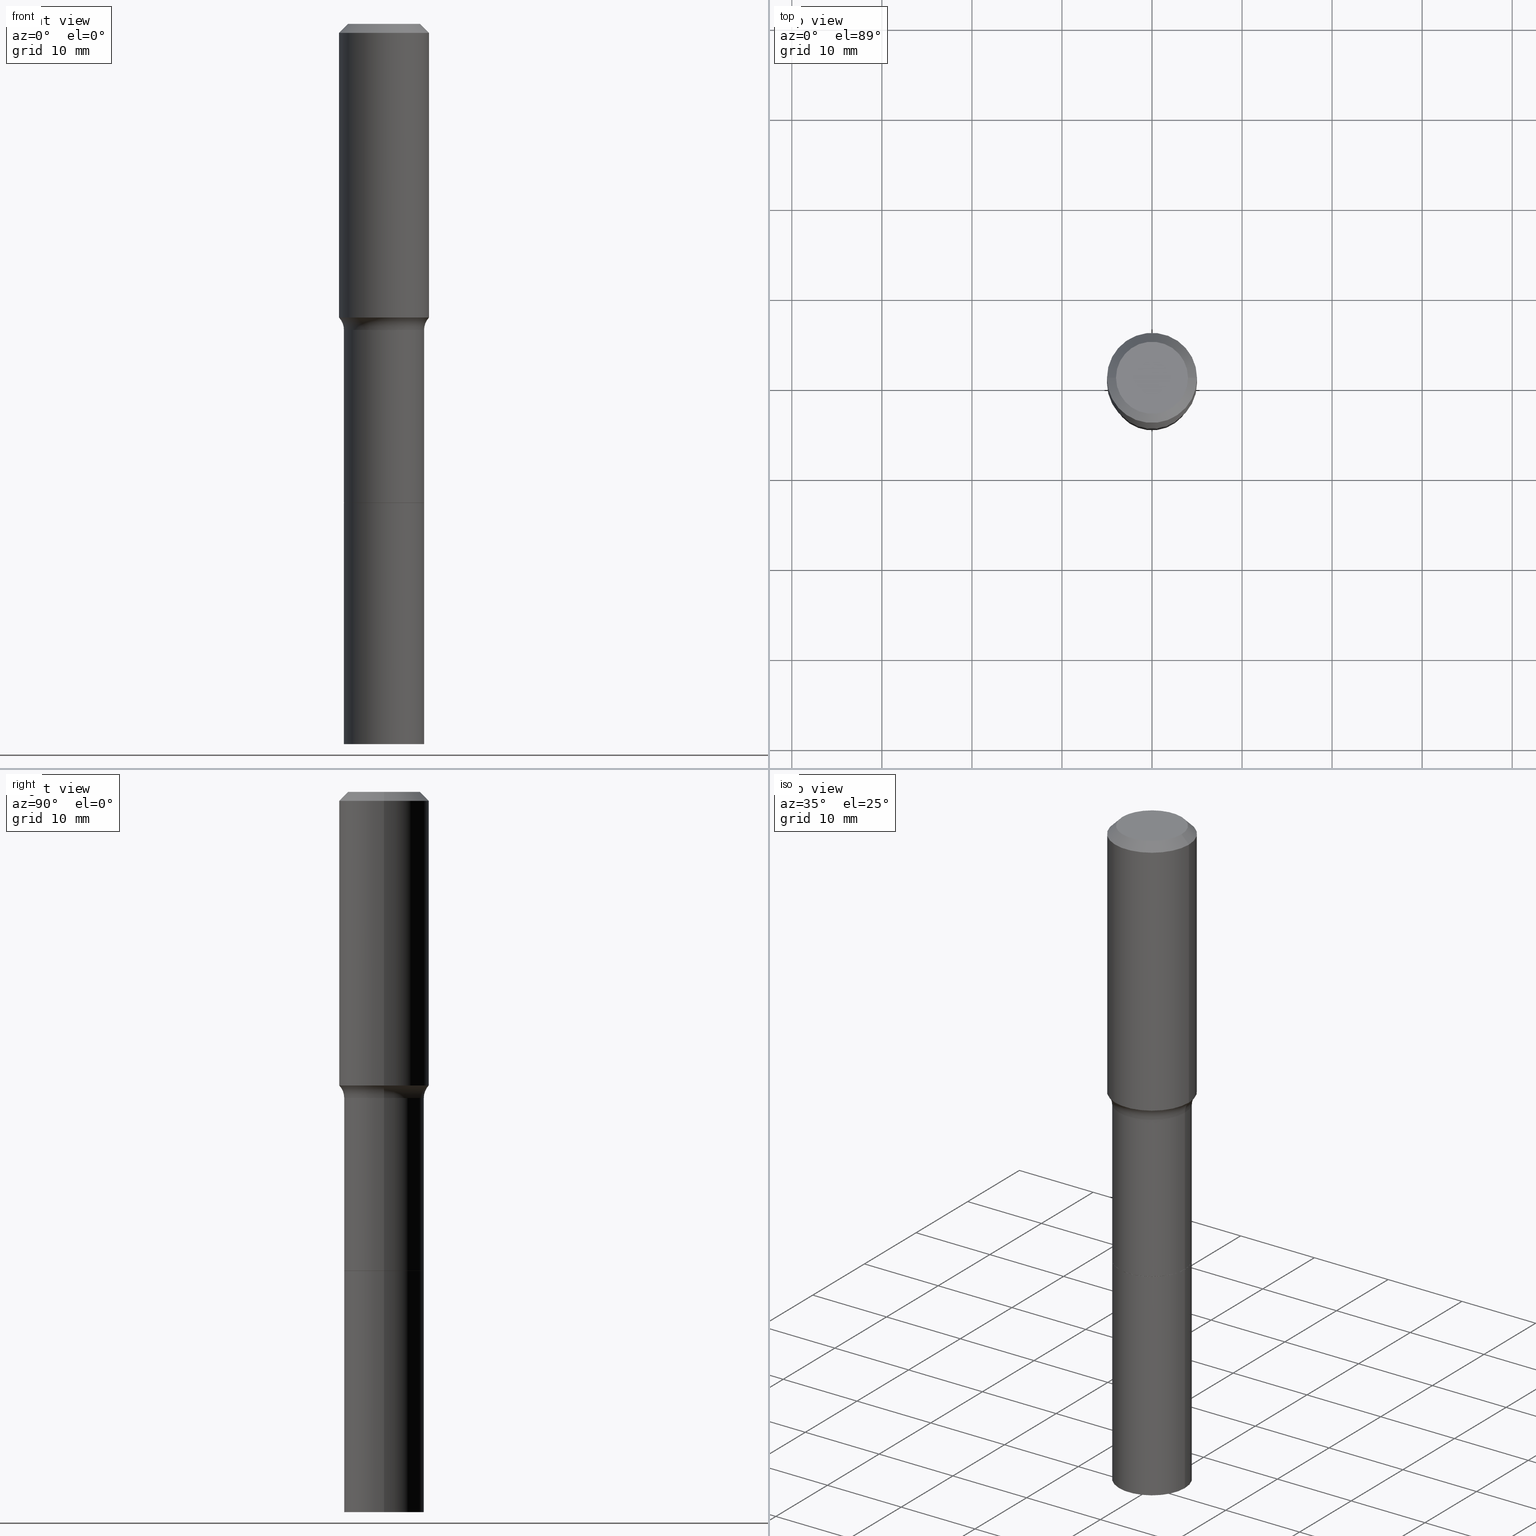
[diagram: canonical four-view strip — front | top / right | iso, engineering-drawing reading convention]
A machine part, canonical four-view strip (front | top / right | iso — engineering-drawing reading convention). The complete STEP part file that produces these views, byte-faithful:
ISO-10303-21;
HEADER;
FILE_DESCRIPTION (( 'STEP AP203' ),
    '1' );
FILE_NAME ('67766.STEP',
    '2025-04-01T15:30:25',
    ( '' ),
    ( '' ),
    'SwSTEP 2.0',
    'SolidWorks 2024',
    '' );
FILE_SCHEMA (( 'CONFIG_CONTROL_DESIGN' ));
ENDSEC;

DATA;
#1 = DIRECTION ( 'NONE',  ( -2.445468806185136877E-29, 3.491481338843145188E-15, 1.000000000000000000 ) ) ;
#2 = CARTESIAN_POINT ( 'NONE',  ( 0.1751999999999998836, -5.897111981306068614E-15, -1.338600000000000234 ) ) ;
#3 = ORIENTED_EDGE ( 'NONE', *, *, #29, .T. ) ;
#4 = LENGTH_MEASURE_WITH_UNIT ( LENGTH_MEASURE( 0.02539999999999999897 ), #48 );
#5 = ORIENTED_EDGE ( 'NONE', *, *, #284, .T. ) ;
#6 = ADVANCED_FACE ( 'NONE', ( #11 ), #261, .F. ) ;
#7 = CIRCLE ( 'NONE', #201, 0.1966917038704663334 ) ;
#8 = EDGE_CURVE ( 'NONE', #128, #358, #281, .T. ) ;
#9 = ORIENTED_EDGE ( 'NONE', *, *, #395, .F. ) ;
#10 = APPROVAL_DATE_TIME ( #220, #476 ) ;
#11 = FACE_OUTER_BOUND ( 'NONE', #173, .T. ) ;
#12 = APPLICATION_CONTEXT ( 'configuration controlled 3d designs of mechanical parts and assemblies' ) ;
#13 = PRODUCT ( '67766', '67766', '', ( #443 ) ) ;
#14 = DIRECTION ( 'NONE',  ( -2.445468806185136597E-29, 3.491481338843145583E-15, 1.000000000000000000 ) ) ;
#15 = AXIS2_PLACEMENT_3D ( 'NONE', #466, #303, #469 ) ;
#16 = FACE_OUTER_BOUND ( 'NONE', #251, .T. ) ;
#17 = DIRECTION ( 'NONE',  ( 1.000000000000000000, 0.000000000000000000, 0.000000000000000000 ) ) ;
#18 = DATE_AND_TIME ( #375, #437 ) ;
#19 = AXIS2_PLACEMENT_3D ( 'NONE', #36, #107, #346 ) ;
#20 = VECTOR ( 'NONE', #397, 39.37007874015748143 ) ;
#21 = EDGE_CURVE ( 'NONE', #352, #361, #471, .T. ) ;
#22 = DIRECTION ( 'NONE',  ( 1.000000000000000000, -6.982962677686269077E-15, 0.000000000000000000 ) ) ;
#23 = CARTESIAN_POINT ( 'NONE',  ( -0.1966917038704663334, -3.085623542698681313E-15, -1.284040131195000267 ) ) ;
#24 = ORIENTED_EDGE ( 'NONE', *, *, #315, .T. ) ;
#25 = CARTESIAN_POINT ( 'NONE',  ( -0.1574800000000000089, 1.168406772637159815E-15, 3.855188123707939751E-18 ) ) ;
#26 = CARTESIAN_POINT ( 'NONE',  ( 9.627810689950955906E-31, -1.374596203102556794E-16, -0.03937000000000030059 ) ) ;
#27 = DIRECTION ( 'NONE',  ( 1.000000000000000000, -6.982962677686266711E-15, 4.876176775795935793E-29 ) ) ;
#28 = ORIENTED_EDGE ( 'NONE', *, *, #258, .T. ) ;
#29 = EDGE_CURVE ( 'NONE', #203, #420, #322, .T. ) ;
#30 = CYLINDRICAL_SURFACE ( 'NONE', #371, 0.1968500000000001082 ) ;
#31 = AXIS2_PLACEMENT_3D ( 'NONE', #380, #146, #22 ) ;
#32 = EDGE_CURVE ( 'NONE', #233, #358, #407, .T. ) ;
#33 = CARTESIAN_POINT ( 'NONE',  ( 0.1966917038704663334, -5.856692983531033288E-15, -1.284040131195000267 ) ) ;
#34 = AXIS2_PLACEMENT_3D ( 'NONE', #278, #351, #431 ) ;
#35 = CARTESIAN_POINT ( 'NONE',  ( 5.122278961435387736E-29, -7.313256812340853051E-15, -2.094600000000000239 ) ) ;
#36 = CARTESIAN_POINT ( 'NONE',  ( 3.140080086727243021E-29, -4.483202156393047465E-15, -1.284040131195000267 ) ) ;
#37 = ORIENTED_EDGE ( 'NONE', *, *, #381, .T. ) ;
#38 =( NAMED_UNIT ( * ) SI_UNIT ( $, .STERADIAN. ) SOLID_ANGLE_UNIT ( ) );
#39 = EDGE_CURVE ( 'NONE', #268, #472, #269, .T. ) ;
#40 = EDGE_CURVE ( 'NONE', #203, #352, #257, .T. ) ;
#41 = DIRECTION ( 'NONE',  ( 1.000000000000000000, -6.982962677686265922E-15, 0.000000000000000000 ) ) ;
#42 = ORIENTED_EDGE ( 'NONE', *, *, #189, .T. ) ;
#43 = CC_DESIGN_APPROVAL ( #197, ( #506 ) ) ;
#44 = DIRECTION ( 'NONE',  ( -2.445468806185136597E-29, 3.491481338843145583E-15, 1.000000000000000000 ) ) ;
#45 = LINE ( 'NONE', #283, #143 ) ;
#46 = CARTESIAN_POINT ( 'NONE',  ( -0.1751999999999999391, 1.244870873051695093E-15, -8.617974278126592972E-30 ) ) ;
#47 = ORIENTED_EDGE ( 'NONE', *, *, #207, .F. ) ;
#48 =( LENGTH_UNIT ( ) NAMED_UNIT ( * ) SI_UNIT ( $, .METRE. ) );
#49 = ORIENTED_EDGE ( 'NONE', *, *, #360, .T. ) ;
#50 = DIRECTION ( 'NONE',  ( 1.000000000000000000, -6.982962677686268288E-15, 4.883557194083113462E-29 ) ) ;
#51 = ORIENTED_EDGE ( 'NONE', *, *, #468, .T. ) ;
#52 = AXIS2_PLACEMENT_3D ( 'NONE', #460, #427, #423 ) ;
#53 = CONICAL_SURFACE ( 'NONE', #79, 0.1966917038704663334, 0.7504915783578517408 ) ;
#54 = APPROVAL_STATUS ( 'not_yet_approved' ) ;
#55 = ORIENTED_EDGE ( 'NONE', *, *, #176, .F. ) ;
#56 = CARTESIAN_POINT ( 'NONE',  ( -4.713871149261283817E-47, 6.730158695841841775E-33, 1.927594061857935365E-18 ) ) ;
#57 = APPROVAL_ROLE ( '' ) ;
#58 = PERSON_AND_ORGANIZATION ( #180, #446 ) ;
#59 = CARTESIAN_POINT ( 'NONE',  ( 5.122278961435387736E-29, -7.313256812340853051E-15, -2.094600000000000239 ) ) ;
#60 = VECTOR ( 'NONE', #334, 39.37007874015748143 ) ;
#61 = PERSON_AND_ORGANIZATION ( #180, #446 ) ;
#62 = UNCERTAINTY_MEASURE_WITH_UNIT (LENGTH_MEASURE( 1.000000000000000082E-05 ), #440, 'distance_accuracy_value', 'NONE');
#63 = EDGE_CURVE ( 'NONE', #268, #492, #302, .T. ) ;
#64 = COORDINATED_UNIVERSAL_TIME_OFFSET ( 5, 0, .BEHIND. ) ;
#65 = PLANE ( 'NONE',  #135 ) ;
#66 = VERTEX_POINT ( 'NONE', #25 ) ;
#67 = CARTESIAN_POINT ( 'NONE',  ( -0.1746999999999999942, -6.071938652967958265E-15, -2.094600000000000239 ) ) ;
#68 = VECTOR ( 'NONE', #1, 39.37007874015748143 ) ;
#69 = DIRECTION ( 'NONE',  ( 1.000000000000000000, -6.982962677686267499E-15, 0.000000000000000000 ) ) ;
#70 = CARTESIAN_POINT ( 'NONE',  ( -0.1746999999999999942, -6.069289425793847064E-15, -2.094600000000000239 ) ) ;
#71 = DIRECTION ( 'NONE',  ( -0.6819983600627106402, 7.399397606725103836E-15, 0.7313537016189727291 ) ) ;
#72 = DIRECTION ( 'NONE',  ( -2.445468806185136597E-29, 3.491481338843145583E-15, 1.000000000000000000 ) ) ;
#73 = ORIENTED_EDGE ( 'NONE', *, *, #366, .T. ) ;
#74 = ADVANCED_FACE ( 'NONE', ( #455 ), #192, .F. ) ;
#75 = DIRECTION ( 'NONE',  ( 1.000000000000000000, -6.982962677686267499E-15, 0.000000000000000000 ) ) ;
#76 = CARTESIAN_POINT ( 'NONE',  ( 0.1751999999999999946, -8.534926132802064636E-15, -2.094100000000000072 ) ) ;
#77 = CARTESIAN_POINT ( 'NONE',  ( -9.427742298522567634E-47, 1.346031739168368355E-32, 3.855188123715870730E-18 ) ) ;
#78 = DIRECTION ( 'NONE',  ( 1.000000000000000000, -6.982962677686266711E-15, 4.876176775795935793E-29 ) ) ;
#79 = AXIS2_PLACEMENT_3D ( 'NONE', #156, #463, #467 ) ;
#80 = EDGE_CURVE ( 'NONE', #436, #492, #282, .T. ) ;
#81 = CARTESIAN_POINT ( 'NONE',  ( 9.627810689950955906E-31, -1.374596203102556794E-16, -0.03937000000000030059 ) ) ;
#82 = ORIENTED_EDGE ( 'NONE', *, *, #294, .T. ) ;
#83 = CARTESIAN_POINT ( 'NONE',  ( 0.1966917038704663334, -5.856692983531034076E-15, -1.284040131195000267 ) ) ;
#84 = DIRECTION ( 'NONE',  ( -2.445468806185136597E-29, 3.491481338843145583E-15, 1.000000000000000000 ) ) ;
#85 = AXIS2_PLACEMENT_3D ( 'NONE', #56, #304, #193 ) ;
#86 = VERTEX_POINT ( 'NONE', #265 ) ;
#87 =( GEOMETRIC_REPRESENTATION_CONTEXT ( 3 ) GLOBAL_UNCERTAINTY_ASSIGNED_CONTEXT ( ( #62 ) ) GLOBAL_UNIT_ASSIGNED_CONTEXT ( ( #440, #364, #38 ) ) REPRESENTATION_CONTEXT ( 'NONE', 'WORKASPACE' ) );
#88 = DIRECTION ( 'NONE',  ( -2.445468806185136597E-29, 3.491481338843145583E-15, 1.000000000000000000 ) ) ;
#89 = ORIENTED_EDGE ( 'NONE', *, *, #485, .F. ) ;
#90 = EDGE_LOOP ( 'NONE', ( #470, #37, #367, #321 ) ) ;
#91 = EDGE_LOOP ( 'NONE', ( #356, #433 ) ) ;
#92 = CIRCLE ( 'NONE', #461, 0.1746999999999999942 ) ;
#93 = AXIS2_PLACEMENT_3D ( 'NONE', #404, #169, #510 ) ;
#94 = APPLICATION_PROTOCOL_DEFINITION ( 'international standard', 'config_control_design', 1994, #12 ) ;
#95 = DIRECTION ( 'NONE',  ( 1.000000000000000000, -6.982962677686266711E-15, 4.876176775795935793E-29 ) ) ;
#96 = ADVANCED_FACE ( 'NONE', ( #417 ), #260, .F. ) ;
#97 = PERSON_AND_ORGANIZATION ( #180, #446 ) ;
#98 = CARTESIAN_POINT ( 'NONE',  ( 3.273504543959424474E-29, -4.673696920175435525E-15, -1.338600000000000234 ) ) ;
#99 = CALENDAR_DATE ( 2025, 1, 4 ) ;
#100 = VECTOR ( 'NONE', #145, 39.37007874015748143 ) ;
#101 = DIRECTION ( 'NONE',  ( 0.000000000000000000, 0.000000000000000000, 1.000000000000000000 ) ) ;
#102 = CALENDAR_DATE ( 2025, 1, 4 ) ;
#103 = CARTESIAN_POINT ( 'NONE',  ( 0.1752000000000001889, -1.222018468595100619E-14, -3.149600000000000399 ) ) ;
#104 = ORIENTED_EDGE ( 'NONE', *, *, #129, .T. ) ;
#105 = DATE_TIME_ROLE ( 'classification_date' ) ;
#106 = CARTESIAN_POINT ( 'NONE',  ( 5.121056227032294935E-29, -7.311511071671430759E-15, -2.094100000000000072 ) ) ;
#107 = DIRECTION ( 'NONE',  ( -2.445468806185136597E-29, 3.491481338843145583E-15, 1.000000000000000000 ) ) ;
#108 = DIRECTION ( 'NONE',  ( 1.000000000000000000, -6.982962677686265922E-15, 4.876223630392693006E-29 ) ) ;
#109 = SHAPE_DEFINITION_REPRESENTATION ( #288, #254 ) ;
#110 = DIRECTION ( 'NONE',  ( 1.000000000000000000, -6.982962677686267499E-15, 0.000000000000000000 ) ) ;
#111 = CC_DESIGN_PERSON_AND_ORGANIZATION_ASSIGNMENT ( #295, #339, ( #314 ) ) ;
#112 = FACE_OUTER_BOUND ( 'NONE', #90, .T. ) ;
#113 = EDGE_CURVE ( 'NONE', #120, #472, #151, .T. ) ;
#114 = DIRECTION ( 'NONE',  ( 2.445468806185136597E-29, -3.491481338843145583E-15, -1.000000000000000000 ) ) ;
#115 = CARTESIAN_POINT ( 'NONE',  ( 3.139664963955859804E-29, -4.482609471094445680E-15, -1.283870379378770243 ) ) ;
#116 = CC_DESIGN_PERSON_AND_ORGANIZATION_ASSIGNMENT ( #292, #141, ( #392 ) ) ;
#117 = AXIS2_PLACEMENT_3D ( 'NONE', #387, #196, #391 ) ;
#118 = FACE_OUTER_BOUND ( 'NONE', #240, .T. ) ;
#119 = AXIS2_PLACEMENT_3D ( 'NONE', #162, #320, #50 ) ;
#120 = VERTEX_POINT ( 'NONE', #70 ) ;
#121 = CARTESIAN_POINT ( 'NONE',  ( 3.273504543959424474E-29, -4.673696920175435525E-15, -1.338600000000000234 ) ) ;
#122 = CARTESIAN_POINT ( 'NONE',  ( -0.1966917038704663334, -3.085623542698680919E-15, -1.284040131195000267 ) ) ;
#123 = ORIENTED_EDGE ( 'NONE', *, *, #360, .F. ) ;
#124 = DIRECTION ( 'NONE',  ( -1.000000000000000000, 6.982962677686265922E-15, -4.876176775795935793E-29 ) ) ;
#125 = EDGE_CURVE ( 'NONE', #86, #120, #92, .T. ) ;
#126 = CONICAL_SURFACE ( 'NONE', #370, 0.1968500000000000527, 0.7853981633974450594 ) ;
#127 = CONICAL_SURFACE ( 'NONE', #34, 0.1746999999999999942, 0.7853981633975507526 ) ;
#128 = VERTEX_POINT ( 'NONE', #231 ) ;
#129 = EDGE_CURVE ( 'NONE', #66, #128, #200, .T. ) ;
#130 = ORIENTED_EDGE ( 'NONE', *, *, #442, .T. ) ;
#131 = EDGE_LOOP ( 'NONE', ( #55, #24, #154, #47 ) ) ;
#132 = CC_DESIGN_DATE_AND_TIME_ASSIGNMENT ( #498, #105, ( #506 ) ) ;
#133 = APPLICATION_PROTOCOL_DEFINITION ( 'international standard', 'config_control_design', 1994, #226 ) ;
#134 = DIRECTION ( 'NONE',  ( 2.438088387897960049E-29, -3.491481338843145188E-15, -1.000000000000000000 ) ) ;
#135 = AXIS2_PLACEMENT_3D ( 'NONE', #473, #516, #124 ) ;
#136 = ADVANCED_FACE ( 'NONE', ( #112 ), #170, .T. ) ;
#137 = DIRECTION ( 'NONE',  ( -2.438088387897960049E-29, 3.491481338843145188E-15, 1.000000000000000000 ) ) ;
#138 = CALENDAR_DATE ( 2025, 1, 4 ) ;
#139 = CARTESIAN_POINT ( 'NONE',  ( 0.1968500000000000527, -1.487948651171581996E-15, -0.03937000000000030059 ) ) ;
#140 = APPROVAL_DATE_TIME ( #493, #197 ) ;
#141 = PERSON_AND_ORGANIZATION_ROLE ( 'creator' ) ;
#142 = VECTOR ( 'NONE', #310, 39.37007874015748143 ) ;
#143 = VECTOR ( 'NONE', #438, 39.37007874015748143 ) ;
#144 = FACE_OUTER_BOUND ( 'NONE', #385, .T. ) ;
#145 = DIRECTION ( 'NONE',  ( -2.445468806185136877E-29, 3.491481338843145188E-15, 1.000000000000000000 ) ) ;
#146 = DIRECTION ( 'NONE',  ( -2.445468806185136597E-29, 3.491481338843145583E-15, 1.000000000000000000 ) ) ;
#147 = CYLINDRICAL_SURFACE ( 'NONE', #52, 0.1751999999999999391 ) ;
#148 = DIRECTION ( 'NONE',  ( -2.445468806185136597E-29, 3.491481338843145583E-15, 1.000000000000000000 ) ) ;
#149 = EDGE_LOOP ( 'NONE', ( #104, #327 ) ) ;
#150 = AXIS2_PLACEMENT_3D ( 'NONE', #218, #14, #178 ) ;
#151 = LINE ( 'NONE', #67, #389 ) ;
#152 = APPROVAL_PERSON_ORGANIZATION ( #97, #263, #57 ) ;
#153 = CARTESIAN_POINT ( 'NONE',  ( 0.1968500000000001915, -5.857205674196988866E-15, -1.283870379378770243 ) ) ;
#154 = ORIENTED_EDGE ( 'NONE', *, *, #40, .T. ) ;
#155 = CARTESIAN_POINT ( 'NONE',  ( 0.1968500000000001082, -1.374596203102542397E-15, 9.598753983154305062E-30 ) ) ;
#156 = CARTESIAN_POINT ( 'NONE',  ( 3.140080086727243021E-29, -4.483202156393047465E-15, -1.284040131195000267 ) ) ;
#157 = ORIENTED_EDGE ( 'NONE', *, *, #63, .F. ) ;
#158 = CARTESIAN_POINT ( 'NONE',  ( 3.273504543959424474E-29, -4.673696920175435525E-15, -1.338600000000000234 ) ) ;
#159 = EDGE_LOOP ( 'NONE', ( #439, #487, #51, #398 ) ) ;
#160 = FACE_OUTER_BOUND ( 'NONE', #287, .T. ) ;
#161 = AXIS2_PLACEMENT_3D ( 'NONE', #35, #72, #500 ) ;
#162 = CARTESIAN_POINT ( 'NONE',  ( 3.273504543959424474E-29, -4.673696920175435525E-15, -1.338600000000000234 ) ) ;
#163 = ADVANCED_FACE ( 'NONE', ( #386 ), #30, .T. ) ;
#164 = FACE_OUTER_BOUND ( 'NONE', #390, .T. ) ;
#165 = ORIENTED_EDGE ( 'NONE', *, *, #291, .T. ) ;
#166 = EDGE_CURVE ( 'NONE', #120, #86, #451, .T. ) ;
#167 = CARTESIAN_POINT ( 'NONE',  ( -0.1751999999999999946, -4.747733122871737457E-15, -2.094100000000000072 ) ) ;
#168 = EDGE_LOOP ( 'NONE', ( #165, #518, #325, #394 ) ) ;
#169 = DIRECTION ( 'NONE',  ( -2.445468806185136597E-29, 3.491481338843145583E-15, 1.000000000000000000 ) ) ;
#170 = CONICAL_SURFACE ( 'NONE', #362, 0.1966917038704663334, 0.7504915783578517408 ) ;
#171 = FACE_OUTER_BOUND ( 'NONE', #256, .T. ) ;
#172 = AXIS2_PLACEMENT_3D ( 'NONE', #225, #101, #17 ) ;
#173 = EDGE_LOOP ( 'NONE', ( #280, #82, #474, #312 ) ) ;
#174 = MANIFOLD_SOLID_BREP ( 'Body-Move/Copy2[2]', #481 ) ;
#175 = ORIENTED_EDGE ( 'NONE', *, *, #189, .F. ) ;
#176 = EDGE_CURVE ( 'NONE', #420, #361, #221, .T. ) ;
#177 = APPROVAL_ROLE ( '' ) ;
#178 = DIRECTION ( 'NONE',  ( 1.000000000000000000, -6.982962677686265922E-15, 0.000000000000000000 ) ) ;
#179 = VECTOR ( 'NONE', #71, 39.37007874015748143 ) ;
#180 = PERSON ( 'UNSPECIFIED', 'UNSPECIFIED', 'UNSPECIFIED', ('UNSPECIFIED'), ('UNSPECIFIED'), ('UNSPECIFIED') ) ;
#181 = VECTOR ( 'NONE', #435, 39.37007874015748143 ) ;
#182 = APPROVAL_STATUS ( 'not_yet_approved' ) ;
#183 = CARTESIAN_POINT ( 'NONE',  ( 9.627810689950955906E-31, -1.374596203102556794E-16, -0.03937000000000030059 ) ) ;
#184 = ADVANCED_FACE ( 'NONE', ( #16 ), #245, .T. ) ;
#185 = PERSON_AND_ORGANIZATION_ROLE ( 'design_supplier' ) ;
#186 = AXIS2_PLACEMENT_3D ( 'NONE', #106, #341, #369 ) ;
#187 = AXIS2_PLACEMENT_3D ( 'NONE', #402, #517, #479 ) ;
#188 = DATE_AND_TIME ( #99, #255 ) ;
#189 = EDGE_CURVE ( 'NONE', #403, #358, #507, .T. ) ;
#190 = CARTESIAN_POINT ( 'NONE',  ( 3.140080086727243021E-29, -4.483202156393047465E-15, -1.284040131195000267 ) ) ;
#191 = DIRECTION ( 'NONE',  ( 1.000000000000000000, -6.982962677686265922E-15, 4.876176775795935793E-29 ) ) ;
#192 = PLANE ( 'NONE',  #85 ) ;
#193 = DIRECTION ( 'NONE',  ( -1.000000000000000000, 6.982962677686265922E-15, -4.876176775795935793E-29 ) ) ;
#194 = CARTESIAN_POINT ( 'NONE',  ( 5.122278961435387736E-29, -7.313256812340853051E-15, -2.094600000000000239 ) ) ;
#195 = ORIENTED_EDGE ( 'NONE', *, *, #40, .F. ) ;
#196 = DIRECTION ( 'NONE',  ( -2.445468806185136597E-29, 3.491481338843145583E-15, 1.000000000000000000 ) ) ;
#197 = APPROVAL ( #416, 'UNSPECIFIED' ) ;
#198 = ADVANCED_FACE ( 'NONE', ( #160 ), #215, .F. ) ;
#199 = DIRECTION ( 'NONE',  ( -1.000000000000000000, 7.105427357601005014E-15, 0.000000000000000000 ) ) ;
#200 = CIRCLE ( 'NONE', #377, 0.1574800000000000089 ) ;
#201 = AXIS2_PLACEMENT_3D ( 'NONE', #190, #236, #458 ) ;
#202 = DIRECTION ( 'NONE',  ( 1.000000000000000000, -6.982962677686266711E-15, 0.000000000000000000 ) ) ;
#203 = VERTEX_POINT ( 'NONE', #103 ) ;
#204 = CC_DESIGN_PERSON_AND_ORGANIZATION_ASSIGNMENT ( #496, #368, ( #13 ) ) ;
#205 = CARTESIAN_POINT ( 'NONE',  ( 5.122278961435387736E-29, -7.313256812340853051E-15, -2.094600000000000239 ) ) ;
#206 = ORIENTED_EDGE ( 'NONE', *, *, #315, .F. ) ;
#207 = EDGE_CURVE ( 'NONE', #361, #352, #399, .T. ) ;
#208 = CARTESIAN_POINT ( 'NONE',  ( 5.122278961435387736E-29, -7.313256812340853051E-15, -2.094600000000000239 ) ) ;
#209 = FACE_OUTER_BOUND ( 'NONE', #441, .T. ) ;
#210 = ORIENTED_EDGE ( 'NONE', *, *, #125, .T. ) ;
#211 = VECTOR ( 'NONE', #382, 39.37007874015748143 ) ;
#212 = AXIS2_PLACEMENT_3D ( 'NONE', #77, #428, #108 ) ;
#213 = ORIENTED_EDGE ( 'NONE', *, *, #39, .T. ) ;
#214 = ADVANCED_FACE ( 'NONE', ( #266 ), #147, .T. ) ;
#215 = PLANE ( 'NONE',  #345 ) ;
#216 = COORDINATED_UNIVERSAL_TIME_OFFSET ( 5, 0, .BEHIND. ) ;
#217 = ORIENTED_EDGE ( 'NONE', *, *, #80, .F. ) ;
#218 = CARTESIAN_POINT ( 'NONE',  ( 5.122278961435387736E-29, -7.313256812340853051E-15, -2.094600000000000239 ) ) ;
#219 = CALENDAR_DATE ( 2025, 1, 4 ) ;
#220 = DATE_AND_TIME ( #138, #372 ) ;
#221 = LINE ( 'NONE', #412, #60 ) ;
#222 = CIRCLE ( 'NONE', #212, 0.1574800000000000089 ) ;
#223 = LOCAL_TIME ( 11, 30, 25.00000000000000000, #259 ) ;
#224 = EDGE_CURVE ( 'NONE', #319, #253, #499, .T. ) ;
#225 = CARTESIAN_POINT ( 'NONE',  ( 0.000000000000000000, 0.000000000000000000, 0.000000000000000000 ) ) ;
#226 = APPLICATION_CONTEXT ( 'configuration controlled 3d designs of mechanical parts and assemblies' ) ;
#227 = CARTESIAN_POINT ( 'NONE',  ( 3.139664963955859804E-29, -4.482609471094445680E-15, -1.283870379378770243 ) ) ;
#228 = CLOSED_SHELL ( 'NONE', ( #509, #296, #373, #96 ) ) ;
#229 = AXIS2_PLACEMENT_3D ( 'NONE', #81, #88, #202 ) ;
#230 = APPROVAL_ROLE ( '' ) ;
#231 = CARTESIAN_POINT ( 'NONE',  ( 0.1574800000000000089, -1.284169937930321386E-15, 3.855188123724205385E-18 ) ) ;
#232 = DIRECTION ( 'NONE',  ( -2.445468806185136597E-29, 3.491481338843145583E-15, 1.000000000000000000 ) ) ;
#233 = VERTEX_POINT ( 'NONE', #235 ) ;
#234 = CARTESIAN_POINT ( 'NONE',  ( -9.427742298522567634E-47, 1.346031739168368355E-32, 3.855188123715870730E-18 ) ) ;
#235 = CARTESIAN_POINT ( 'NONE',  ( -0.1968500000000000527, -9.113311703585926457E-16, -0.03937000000000030059 ) ) ;
#236 = DIRECTION ( 'NONE',  ( -2.445468806185136597E-29, 3.491481338843145583E-15, 1.000000000000000000 ) ) ;
#237 = ORIENTED_EDGE ( 'NONE', *, *, #284, .F. ) ;
#238 = CARTESIAN_POINT ( 'NONE',  ( 5.122278961435387736E-29, -7.313256812340853051E-15, -2.094600000000000239 ) ) ;
#239 = DIRECTION ( 'NONE',  ( -1.000000000000000000, 6.982962677686266711E-15, 0.000000000000000000 ) ) ;
#240 = EDGE_LOOP ( 'NONE', ( #210, #305, #478, #123 ) ) ;
#241 = CIRCLE ( 'NONE', #323, 0.1968500000000001915 ) ;
#242 = FACE_OUTER_BOUND ( 'NONE', #131, .T. ) ;
#243 = ORIENTED_EDGE ( 'NONE', *, *, #485, .T. ) ;
#244 = ORIENTED_EDGE ( 'NONE', *, *, #166, .F. ) ;
#245 = CYLINDRICAL_SURFACE ( 'NONE', #418, 0.1751999999999999391 ) ;
#246 = AXIS2_PLACEMENT_3D ( 'NONE', #194, #340, #309 ) ;
#247 = CARTESIAN_POINT ( 'NONE',  ( 0.1968500000000000527, -1.512055823412797583E-15, -0.03937000000000030059 ) ) ;
#248 = TOROIDAL_SURFACE ( 'NONE', #119, 0.2551999999999998714, 0.08000000000000007105 ) ;
#249 = EDGE_LOOP ( 'NONE', ( #130, #454, #89, #175 ) ) ;
#250 = DIRECTION ( 'NONE',  ( -2.445468806185136597E-29, 3.491481338843145583E-15, 1.000000000000000000 ) ) ;
#251 = EDGE_LOOP ( 'NONE', ( #409, #5, #311, #217 ) ) ;
#252 = PRODUCT_RELATED_PRODUCT_CATEGORY ( 'detail', '', ( #13 ) ) ;
#253 = VERTEX_POINT ( 'NONE', #383 ) ;
#254 = ADVANCED_BREP_SHAPE_REPRESENTATION ( '67766', ( #328, #174, #172 ), #87 ) ;
#255 = LOCAL_TIME ( 11, 30, 25.00000000000000000, #447 ) ;
#256 = EDGE_LOOP ( 'NONE', ( #9, #432, #243, #401 ) ) ;
#257 = LINE ( 'NONE', #501, #100 ) ;
#258 = EDGE_CURVE ( 'NONE', #289, #492, #337, .T. ) ;
#259 = COORDINATED_UNIVERSAL_TIME_OFFSET ( 5, 0, .BEHIND. ) ;
#260 = PLANE ( 'NONE',  #332 ) ;
#261 = TOROIDAL_SURFACE ( 'NONE', #505, 0.2551999999999998714, 0.08000000000000007105 ) ;
#262 = CIRCLE ( 'NONE', #93, 0.1752000000000001889 ) ;
#263 = APPROVAL ( #182, 'UNSPECIFIED' ) ;
#264 = PERSON_AND_ORGANIZATION ( #180, #446 ) ;
#265 = CARTESIAN_POINT ( 'NONE',  ( 0.1746999999999999942, -8.533180392132643921E-15, -2.094600000000000239 ) ) ;
#266 = FACE_OUTER_BOUND ( 'NONE', #338, .T. ) ;
#267 = DIRECTION ( 'NONE',  ( -2.445468806185136597E-29, 3.491481338843145583E-15, 1.000000000000000000 ) ) ;
#268 = VERTEX_POINT ( 'NONE', #76 ) ;
#269 = CIRCLE ( 'NONE', #186, 0.1751999999999999946 ) ;
#270 = APPROVAL_PERSON_ORGANIZATION ( #264, #197, #230 ) ;
#271 = DIRECTION ( 'NONE',  ( 1.000000000000000000, -6.982962677686266711E-15, 0.000000000000000000 ) ) ;
#272 = CARTESIAN_POINT ( 'NONE',  ( 3.140080086727243021E-29, -4.483202156393047465E-15, -1.284040131195000267 ) ) ;
#273 = ADVANCED_FACE ( 'NONE', ( #457 ), #126, .T. ) ;
#274 = DIRECTION ( 'NONE',  ( -2.445468806185136597E-29, 3.491481338843145583E-15, 1.000000000000000000 ) ) ;
#275 = CC_DESIGN_PERSON_AND_ORGANIZATION_ASSIGNMENT ( #331, #185, ( #314 ) ) ;
#276 = DIRECTION ( 'NONE',  ( 7.105427357601001859E-15, 1.000000000000000000, -3.491481338843145583E-15 ) ) ;
#277 = CIRCLE ( 'NONE', #229, 0.1968500000000000527 ) ;
#278 = CARTESIAN_POINT ( 'NONE',  ( 5.122278961435387736E-29, -7.313256812340853051E-15, -2.094600000000000239 ) ) ;
#279 = ORIENTED_EDGE ( 'NONE', *, *, #421, .F. ) ;
#280 = ORIENTED_EDGE ( 'NONE', *, *, #381, .F. ) ;
#281 = LINE ( 'NONE', #139, #297 ) ;
#282 = CIRCLE ( 'NONE', #445, 0.1751999999999998836 ) ;
#283 = CARTESIAN_POINT ( 'NONE',  ( 0.1746999999999999942, -8.533180392132643921E-15, -2.094600000000000239 ) ) ;
#284 = EDGE_CURVE ( 'NONE', #472, #268, #489, .T. ) ;
#285 = ORIENTED_EDGE ( 'NONE', *, *, #166, .T. ) ;
#286 = CC_DESIGN_DATE_AND_TIME_ASSIGNMENT ( #188, #414, ( #392 ) ) ;
#287 = EDGE_LOOP ( 'NONE', ( #508, #244 ) ) ;
#288 = PRODUCT_DEFINITION_SHAPE ( 'NONE', 'NONE',  #392 ) ;
#289 = VERTEX_POINT ( 'NONE', #33 ) ;
#290 = CARTESIAN_POINT ( 'NONE',  ( 0.000000000000000000, 0.000000000000000000, 0.000000000000000000 ) ) ;
#291 = EDGE_CURVE ( 'NONE', #289, #319, #306, .T. ) ;
#292 = PERSON_AND_ORGANIZATION ( #180, #446 ) ;
#293 = DIRECTION ( 'NONE',  ( 1.000000000000000000, -6.982962677686261189E-15, 0.000000000000000000 ) ) ;
#294 = EDGE_CURVE ( 'NONE', #319, #436, #313, .T. ) ;
#295 = PERSON_AND_ORGANIZATION ( #180, #446 ) ;
#296 = ADVANCED_FACE ( 'NONE', ( #144 ), #65, .T. ) ;
#297 = VECTOR ( 'NONE', #459, 39.37007874015748143 ) ;
#298 = AXIS2_PLACEMENT_3D ( 'NONE', #388, #148, #27 ) ;
#299 = PERSON_AND_ORGANIZATION_ROLE ( 'classification_officer' ) ;
#300 = CARTESIAN_POINT ( 'NONE',  ( -0.2551999999999998714, -2.860391858515660371E-15, -1.338600000000000234 ) ) ;
#301 = EDGE_CURVE ( 'NONE', #289, #403, #359, .T. ) ;
#302 = LINE ( 'NONE', #488, #211 ) ;
#303 = DIRECTION ( 'NONE',  ( -6.982962677686266711E-15, -1.000000000000000000, 3.491481338843145583E-15 ) ) ;
#304 = DIRECTION ( 'NONE',  ( 2.438088387897960049E-29, -3.491481338843145188E-15, -1.000000000000000000 ) ) ;
#305 = ORIENTED_EDGE ( 'NONE', *, *, #113, .T. ) ;
#306 = CIRCLE ( 'NONE', #19, 0.1966917038704663334 ) ;
#307 = AXIS2_PLACEMENT_3D ( 'NONE', #483, #318, #477 ) ;
#308 = DIRECTION ( 'NONE',  ( -2.445468806185136597E-29, 3.491481338843145583E-15, 1.000000000000000000 ) ) ;
#309 = DIRECTION ( 'NONE',  ( 1.000000000000000000, -6.982962677686269077E-15, 0.000000000000000000 ) ) ;
#310 = DIRECTION ( 'NONE',  ( -2.445468806185136877E-29, 3.491481338843145188E-15, 1.000000000000000000 ) ) ;
#311 = ORIENTED_EDGE ( 'NONE', *, *, #63, .T. ) ;
#312 = ORIENTED_EDGE ( 'NONE', *, *, #258, .F. ) ;
#313 = CIRCLE ( 'NONE', #353, 0.08000000000000007105 ) ;
#314 = PRODUCT_DEFINITION_FORMATION_WITH_SPECIFIED_SOURCE ( 'ANY', '', #13, .NOT_KNOWN. ) ;
#315 = EDGE_CURVE ( 'NONE', #420, #203, #262, .T. ) ;
#316 = CYLINDRICAL_SURFACE ( 'NONE', #307, 0.1752000000000000779 ) ;
#317 = DIRECTION ( 'NONE',  ( 0.6819983600627106402, -2.208861293264647143E-15, 0.7313537016189727291 ) ) ;
#318 = DIRECTION ( 'NONE',  ( -2.445468806185136597E-29, 3.491481338843145583E-15, 1.000000000000000000 ) ) ;
#319 = VERTEX_POINT ( 'NONE', #122 ) ;
#320 = DIRECTION ( 'NONE',  ( -2.445468806185136597E-29, 3.491481338843145583E-15, 1.000000000000000000 ) ) ;
#321 = ORIENTED_EDGE ( 'NONE', *, *, #366, .F. ) ;
#322 = CIRCLE ( 'NONE', #429, 0.1752000000000001889 ) ;
#323 = AXIS2_PLACEMENT_3D ( 'NONE', #227, #274, #379 ) ;
#324 = LINE ( 'NONE', #46, #20 ) ;
#325 = ORIENTED_EDGE ( 'NONE', *, *, #442, .F. ) ;
#326 = EDGE_CURVE ( 'NONE', #253, #233, #396, .T. ) ;
#327 = ORIENTED_EDGE ( 'NONE', *, *, #395, .T. ) ;
#328 = MANIFOLD_SOLID_BREP ( 'Body-Move/Copy2[1]', #228 ) ;
#329 = CARTESIAN_POINT ( 'NONE',  ( 7.702248551960706711E-29, -1.099676962482037231E-14, -3.149600000000000399 ) ) ;
#330 = DIMENSIONAL_EXPONENTS ( 1.000000000000000000, 0.000000000000000000, 0.000000000000000000, 0.000000000000000000, 0.000000000000000000, 0.000000000000000000, 0.000000000000000000 ) ;
#331 = PERSON_AND_ORGANIZATION ( #180, #446 ) ;
#332 = AXIS2_PLACEMENT_3D ( 'NONE', #59, #134, #422 ) ;
#333 = CC_DESIGN_SECURITY_CLASSIFICATION ( #506, ( #314 ) ) ;
#334 = DIRECTION ( 'NONE',  ( -2.445468806185136877E-29, 3.491481338843145188E-15, 1.000000000000000000 ) ) ;
#335 = SECURITY_CLASSIFICATION_LEVEL ( 'unclassified' ) ;
#336 = DIRECTION ( 'NONE',  ( -2.445468806185136597E-29, 3.491481338843145583E-15, 1.000000000000000000 ) ) ;
#337 = CIRCLE ( 'NONE', #15, 0.08000000000000007105 ) ;
#338 = EDGE_LOOP ( 'NONE', ( #213, #415, #279, #157 ) ) ;
#339 = PERSON_AND_ORGANIZATION_ROLE ( 'creator' ) ;
#340 = DIRECTION ( 'NONE',  ( -2.445468806185136597E-29, 3.491481338843145583E-15, 1.000000000000000000 ) ) ;
#341 = DIRECTION ( 'NONE',  ( -2.445468806185136597E-29, 3.491481338843145583E-15, 1.000000000000000000 ) ) ;
#342 = CARTESIAN_POINT ( 'NONE',  ( -0.1751999999999998836, -4.747733122871738246E-15, -1.338600000000000234 ) ) ;
#343 = DIRECTION ( 'NONE',  ( 1.000000000000000000, -6.982962677686265922E-15, 0.000000000000000000 ) ) ;
#344 = CC_DESIGN_PERSON_AND_ORGANIZATION_ASSIGNMENT ( #61, #299, ( #506 ) ) ;
#345 = AXIS2_PLACEMENT_3D ( 'NONE', #208, #137, #191 ) ;
#346 = DIRECTION ( 'NONE',  ( 1.000000000000000000, -6.982962677686267499E-15, 0.000000000000000000 ) ) ;
#347 = FACE_OUTER_BOUND ( 'NONE', #168, .T. ) ;
#348 = CARTESIAN_POINT ( 'NONE',  ( -0.1751999999999999946, -7.910142345528915418E-15, -2.094600000000000239 ) ) ;
#349 = ORIENTED_EDGE ( 'NONE', *, *, #291, .F. ) ;
#350 = ADVANCED_FACE ( 'NONE', ( #118 ), #127, .T. ) ;
#351 = DIRECTION ( 'NONE',  ( -2.445468806185136597E-29, 3.491481338843145583E-15, 1.000000000000000000 ) ) ;
#352 = VERTEX_POINT ( 'NONE', #434 ) ;
#353 = AXIS2_PLACEMENT_3D ( 'NONE', #300, #276, #199 ) ;
#354 = CONICAL_SURFACE ( 'NONE', #462, 0.1746999999999999942, 0.7853981633975507526 ) ;
#355 = CARTESIAN_POINT ( 'NONE',  ( 0.000000000000000000, 0.000000000000000000, 0.000000000000000000 ) ) ;
#356 = ORIENTED_EDGE ( 'NONE', *, *, #21, .T. ) ;
#357 = CARTESIAN_POINT ( 'NONE',  ( -0.1968500000000000527, 1.237136582792286422E-15, -0.03937000000000030059 ) ) ;
#358 = VERTEX_POINT ( 'NONE', #247 ) ;
#359 = LINE ( 'NONE', #83, #482 ) ;
#360 = EDGE_CURVE ( 'NONE', #86, #268, #45, .T. ) ;
#361 = VERTEX_POINT ( 'NONE', #348 ) ;
#362 = AXIS2_PLACEMENT_3D ( 'NONE', #272, #426, #75 ) ;
#363 = AXIS2_PLACEMENT_3D ( 'NONE', #158, #267, #69 ) ;
#364 =( NAMED_UNIT ( * ) PLANE_ANGLE_UNIT ( ) SI_UNIT ( $, .RADIAN. ) );
#365 = ORIENTED_EDGE ( 'NONE', *, *, #29, .F. ) ;
#366 = EDGE_CURVE ( 'NONE', #253, #403, #241, .T. ) ;
#367 = ORIENTED_EDGE ( 'NONE', *, *, #301, .T. ) ;
#368 = PERSON_AND_ORGANIZATION_ROLE ( 'design_owner' ) ;
#369 = DIRECTION ( 'NONE',  ( 1.000000000000000000, -6.982962677686263555E-15, 0.000000000000000000 ) ) ;
#370 = AXIS2_PLACEMENT_3D ( 'NONE', #26, #114, #239 ) ;
#371 = AXIS2_PLACEMENT_3D ( 'NONE', #290, #448, #95 ) ;
#372 = LOCAL_TIME ( 11, 30, 25.00000000000000000, #216 ) ;
#373 = ADVANCED_FACE ( 'NONE', ( #242 ), #424, .T. ) ;
#374 = DESIGN_CONTEXT ( 'detailed design', #12, 'design' ) ;
#375 = CALENDAR_DATE ( 2025, 1, 4 ) ;
#376 = APPROVAL_DATE_TIME ( #18, #263 ) ;
#377 = AXIS2_PLACEMENT_3D ( 'NONE', #234, #504, #465 ) ;
#378 = LOCAL_TIME ( 11, 30, 25.00000000000000000, #453 ) ;
#379 = DIRECTION ( 'NONE',  ( 1.000000000000000000, -6.982962677686266711E-15, 0.000000000000000000 ) ) ;
#380 = CARTESIAN_POINT ( 'NONE',  ( 5.122278961435387736E-29, -7.313256812340853051E-15, -2.094600000000000239 ) ) ;
#381 = EDGE_CURVE ( 'NONE', #319, #289, #7, .T. ) ;
#382 = DIRECTION ( 'NONE',  ( -2.445468806185136877E-29, 3.491481338843145188E-15, 1.000000000000000000 ) ) ;
#383 = CARTESIAN_POINT ( 'NONE',  ( -0.1968500000000001915, -3.083906095750687498E-15, -1.283870379378770243 ) ) ;
#384 = CYLINDRICAL_SURFACE ( 'NONE', #298, 0.1968500000000001082 ) ;
#385 = EDGE_LOOP ( 'NONE', ( #365, #206 ) ) ;
#386 = FACE_OUTER_BOUND ( 'NONE', #249, .T. ) ;
#387 = CARTESIAN_POINT ( 'NONE',  ( 5.121056227032294935E-29, -7.311511071671430759E-15, -2.094100000000000072 ) ) ;
#388 = CARTESIAN_POINT ( 'NONE',  ( 0.000000000000000000, 0.000000000000000000, 0.000000000000000000 ) ) ;
#389 = VECTOR ( 'NONE', #491, 39.37007874015748143 ) ;
#390 = EDGE_LOOP ( 'NONE', ( #3, #503, #425, #195 ) ) ;
#391 = DIRECTION ( 'NONE',  ( 1.000000000000000000, -6.982962677686263555E-15, 0.000000000000000000 ) ) ;
#392 = PRODUCT_DEFINITION ( 'UNKNOWN', '', #314, #374 ) ;
#393 = FACE_OUTER_BOUND ( 'NONE', #512, .T. ) ;
#394 = ORIENTED_EDGE ( 'NONE', *, *, #301, .F. ) ;
#395 = EDGE_CURVE ( 'NONE', #128, #66, #222, .T. ) ;
#396 = LINE ( 'NONE', #475, #68 ) ;
#397 = DIRECTION ( 'NONE',  ( -2.445468806185136877E-29, 3.491481338843145188E-15, 1.000000000000000000 ) ) ;
#398 = ORIENTED_EDGE ( 'NONE', *, *, #32, .T. ) ;
#399 = CIRCLE ( 'NONE', #246, 0.1751999999999999946 ) ;
#400 = CIRCLE ( 'NONE', #430, 0.1968500000000001915 ) ;
#401 = ORIENTED_EDGE ( 'NONE', *, *, #468, .F. ) ;
#402 = CARTESIAN_POINT ( 'NONE',  ( 9.627810689950955906E-31, -1.374596203102556794E-16, -0.03937000000000030059 ) ) ;
#403 = VERTEX_POINT ( 'NONE', #153 ) ;
#404 = CARTESIAN_POINT ( 'NONE',  ( 7.702248551960706711E-29, -1.099676962482037231E-14, -3.149600000000000399 ) ) ;
#405 = LINE ( 'NONE', #357, #181 ) ;
#406 = ORIENTED_EDGE ( 'NONE', *, *, #421, .T. ) ;
#407 = CIRCLE ( 'NONE', #513, 0.1968500000000000527 ) ;
#408 = CONICAL_SURFACE ( 'NONE', #187, 0.1968500000000000527, 0.7853981633974450594 ) ;
#409 = ORIENTED_EDGE ( 'NONE', *, *, #450, .F. ) ;
#410 = ADVANCED_FACE ( 'NONE', ( #393 ), #384, .T. ) ;
#411 = DIRECTION ( 'NONE',  ( 1.000000000000000000, -6.982962677686268288E-15, 4.883557194083113462E-29 ) ) ;
#412 = CARTESIAN_POINT ( 'NONE',  ( -0.1752000000000000779, -6.068385939289156578E-15, -2.094600000000000239 ) ) ;
#413 = ADVANCED_FACE ( 'NONE', ( #347 ), #53, .T. ) ;
#414 = DATE_TIME_ROLE ( 'creation_date' ) ;
#415 = ORIENTED_EDGE ( 'NONE', *, *, #450, .T. ) ;
#416 = APPROVAL_STATUS ( 'not_yet_approved' ) ;
#417 = FACE_OUTER_BOUND ( 'NONE', #91, .T. ) ;
#418 = AXIS2_PLACEMENT_3D ( 'NONE', #355, #44, #78 ) ;
#419 = CC_DESIGN_APPROVAL ( #263, ( #314 ) ) ;
#420 = VERTEX_POINT ( 'NONE', #511 ) ;
#421 = EDGE_CURVE ( 'NONE', #492, #436, #515, .T. ) ;
#422 = DIRECTION ( 'NONE',  ( -1.000000000000000000, 6.982962677686265922E-15, -4.876176775795935793E-29 ) ) ;
#423 = DIRECTION ( 'NONE',  ( 1.000000000000000000, -6.982962677686266711E-15, 4.876176775795935793E-29 ) ) ;
#424 = CYLINDRICAL_SURFACE ( 'NONE', #161, 0.1752000000000000779 ) ;
#425 = ORIENTED_EDGE ( 'NONE', *, *, #21, .F. ) ;
#426 = DIRECTION ( 'NONE',  ( -2.445468806185136597E-29, 3.491481338843145583E-15, 1.000000000000000000 ) ) ;
#427 = DIRECTION ( 'NONE',  ( -2.445468806185136597E-29, 3.491481338843145583E-15, 1.000000000000000000 ) ) ;
#428 = DIRECTION ( 'NONE',  ( -2.445468806185136597E-29, 3.491481338843145583E-15, 1.000000000000000000 ) ) ;
#429 = AXIS2_PLACEMENT_3D ( 'NONE', #329, #336, #293 ) ;
#430 = AXIS2_PLACEMENT_3D ( 'NONE', #115, #232, #502 ) ;
#431 = DIRECTION ( 'NONE',  ( 1.000000000000000000, -6.982962677686265922E-15, 0.000000000000000000 ) ) ;
#432 = ORIENTED_EDGE ( 'NONE', *, *, #8, .T. ) ;
#433 = ORIENTED_EDGE ( 'NONE', *, *, #207, .T. ) ;
#434 = CARTESIAN_POINT ( 'NONE',  ( 0.1751999999999999946, -8.536671873471486928E-15, -2.094600000000000239 ) ) ;
#435 = DIRECTION ( 'NONE',  ( -0.7071067811865452413, 2.468850131082233000E-15, -0.7071067811865497932 ) ) ;
#436 = VERTEX_POINT ( 'NONE', #342 ) ;
#437 = LOCAL_TIME ( 11, 30, 25.00000000000000000, #64 ) ;
#438 = DIRECTION ( 'NONE',  ( 0.7071067811866199593, -2.468850131083015945E-15, 0.7071067811864750752 ) ) ;
#439 = ORIENTED_EDGE ( 'NONE', *, *, #8, .F. ) ;
#440 =( CONVERSION_BASED_UNIT ( 'INCH', #4 ) LENGTH_UNIT ( ) NAMED_UNIT ( #330 ) );
#441 = EDGE_LOOP ( 'NONE', ( #444, #349, #28, #406 ) ) ;
#442 = EDGE_CURVE ( 'NONE', #403, #253, #400, .T. ) ;
#443 = MECHANICAL_CONTEXT ( 'NONE', #226, 'mechanical' ) ;
#444 = ORIENTED_EDGE ( 'NONE', *, *, #294, .F. ) ;
#445 = AXIS2_PLACEMENT_3D ( 'NONE', #98, #449, #110 ) ;
#446 = ORGANIZATION ( 'UNSPECIFIED', 'UNSPECIFIED', '' ) ;
#447 = COORDINATED_UNIVERSAL_TIME_OFFSET ( 5, 0, .BEHIND. ) ;
#448 = DIRECTION ( 'NONE',  ( -2.445468806185136597E-29, 3.491481338843145583E-15, 1.000000000000000000 ) ) ;
#449 = DIRECTION ( 'NONE',  ( -2.445468806185136597E-29, 3.491481338843145583E-15, 1.000000000000000000 ) ) ;
#450 = EDGE_CURVE ( 'NONE', #472, #436, #324, .T. ) ;
#451 = CIRCLE ( 'NONE', #150, 0.1746999999999999942 ) ;
#452 = CC_DESIGN_APPROVAL ( #476, ( #392 ) ) ;
#453 = COORDINATED_UNIVERSAL_TIME_OFFSET ( 5, 0, .BEHIND. ) ;
#454 = ORIENTED_EDGE ( 'NONE', *, *, #326, .T. ) ;
#455 = FACE_OUTER_BOUND ( 'NONE', #149, .T. ) ;
#456 = ADVANCED_FACE ( 'NONE', ( #486 ), #354, .T. ) ;
#457 = FACE_OUTER_BOUND ( 'NONE', #159, .T. ) ;
#458 = DIRECTION ( 'NONE',  ( 1.000000000000000000, -6.982962677686267499E-15, 0.000000000000000000 ) ) ;
#459 = DIRECTION ( 'NONE',  ( 0.7071067811865452413, -7.319954787623248157E-15, -0.7071067811865497932 ) ) ;
#460 = CARTESIAN_POINT ( 'NONE',  ( 0.000000000000000000, 0.000000000000000000, 0.000000000000000000 ) ) ;
#461 = AXIS2_PLACEMENT_3D ( 'NONE', #238, #308, #343 ) ;
#462 = AXIS2_PLACEMENT_3D ( 'NONE', #205, #250, #41 ) ;
#463 = DIRECTION ( 'NONE',  ( -2.445468806185136597E-29, 3.491481338843145583E-15, 1.000000000000000000 ) ) ;
#464 = ORIENTED_EDGE ( 'NONE', *, *, #113, .F. ) ;
#465 = DIRECTION ( 'NONE',  ( 1.000000000000000000, -6.982962677686265922E-15, 4.876223630392693006E-29 ) ) ;
#466 = CARTESIAN_POINT ( 'NONE',  ( 0.2551999999999998714, -6.455748995520969477E-15, -1.338600000000000234 ) ) ;
#467 = DIRECTION ( 'NONE',  ( 1.000000000000000000, -6.982962677686267499E-15, 0.000000000000000000 ) ) ;
#468 = EDGE_CURVE ( 'NONE', #66, #233, #405, .T. ) ;
#469 = DIRECTION ( 'NONE',  ( 1.000000000000000000, -6.982962677686265922E-15, 0.000000000000000000 ) ) ;
#470 = ORIENTED_EDGE ( 'NONE', *, *, #224, .F. ) ;
#471 = CIRCLE ( 'NONE', #31, 0.1751999999999999946 ) ;
#472 = VERTEX_POINT ( 'NONE', #167 ) ;
#473 = CARTESIAN_POINT ( 'NONE',  ( 7.702248551960706711E-29, -1.099676962482037231E-14, -3.149600000000000399 ) ) ;
#474 = ORIENTED_EDGE ( 'NONE', *, *, #80, .T. ) ;
#475 = CARTESIAN_POINT ( 'NONE',  ( -0.1968500000000001082, 1.398703375343757985E-15, -9.682923725166787881E-30 ) ) ;
#476 = APPROVAL ( #54, 'UNSPECIFIED' ) ;
#477 = DIRECTION ( 'NONE',  ( 1.000000000000000000, -6.982962677686265922E-15, 0.000000000000000000 ) ) ;
#478 = ORIENTED_EDGE ( 'NONE', *, *, #39, .F. ) ;
#479 = DIRECTION ( 'NONE',  ( -1.000000000000000000, 6.982962677686266711E-15, 0.000000000000000000 ) ) ;
#480 = ORIENTED_EDGE ( 'NONE', *, *, #32, .F. ) ;
#481 = CLOSED_SHELL ( 'NONE', ( #350, #497, #163, #413, #6, #214, #184, #495, #136, #410, #273, #74, #198, #456 ) ) ;
#482 = VECTOR ( 'NONE', #317, 39.37007874015748143 ) ;
#483 = CARTESIAN_POINT ( 'NONE',  ( 5.122278961435387736E-29, -7.313256812340853051E-15, -2.094600000000000239 ) ) ;
#484 = EDGE_LOOP ( 'NONE', ( #464, #285, #49, #237 ) ) ;
#485 = EDGE_CURVE ( 'NONE', #358, #233, #277, .T. ) ;
#486 = FACE_OUTER_BOUND ( 'NONE', #484, .T. ) ;
#487 = ORIENTED_EDGE ( 'NONE', *, *, #129, .F. ) ;
#488 = CARTESIAN_POINT ( 'NONE',  ( 0.1751999999999999391, -1.223415061130633483E-15, 8.543061711194476516E-30 ) ) ;
#489 = CIRCLE ( 'NONE', #117, 0.1751999999999999946 ) ;
#490 = APPROVAL_PERSON_ORGANIZATION ( #58, #476, #177 ) ;
#491 = DIRECTION ( 'NONE',  ( -0.7071067811866199593, 7.493145998870616062E-15, 0.7071067811864750752 ) ) ;
#492 = VERTEX_POINT ( 'NONE', #2 ) ;
#493 = DATE_AND_TIME ( #219, #223 ) ;
#494 = DIRECTION ( 'NONE',  ( -2.445468806185136597E-29, 3.491481338843145583E-15, 1.000000000000000000 ) ) ;
#495 = ADVANCED_FACE ( 'NONE', ( #209 ), #248, .F. ) ;
#496 = PERSON_AND_ORGANIZATION ( #180, #446 ) ;
#497 = ADVANCED_FACE ( 'NONE', ( #171 ), #408, .T. ) ;
#498 = DATE_AND_TIME ( #102, #378 ) ;
#499 = LINE ( 'NONE', #23, #179 ) ;
#500 = DIRECTION ( 'NONE',  ( 1.000000000000000000, -6.982962677686265922E-15, 0.000000000000000000 ) ) ;
#501 = CARTESIAN_POINT ( 'NONE',  ( 0.1752000000000000779, -8.536671873471486928E-15, -2.094600000000000239 ) ) ;
#502 = DIRECTION ( 'NONE',  ( 1.000000000000000000, -6.982962677686266711E-15, 0.000000000000000000 ) ) ;
#503 = ORIENTED_EDGE ( 'NONE', *, *, #176, .T. ) ;
#504 = DIRECTION ( 'NONE',  ( -2.445468806185136597E-29, 3.491481338843145583E-15, 1.000000000000000000 ) ) ;
#505 = AXIS2_PLACEMENT_3D ( 'NONE', #121, #84, #411 ) ;
#506 = SECURITY_CLASSIFICATION ( '', '', #335 ) ;
#507 = LINE ( 'NONE', #155, #142 ) ;
#508 = ORIENTED_EDGE ( 'NONE', *, *, #125, .F. ) ;
#509 = ADVANCED_FACE ( 'NONE', ( #164 ), #316, .T. ) ;
#510 = DIRECTION ( 'NONE',  ( 1.000000000000000000, -6.982962677686261189E-15, 0.000000000000000000 ) ) ;
#511 = CARTESIAN_POINT ( 'NONE',  ( -0.1752000000000001889, -7.910142345528913840E-15, -3.149600000000000399 ) ) ;
#512 = EDGE_LOOP ( 'NONE', ( #514, #73, #42, #480 ) ) ;
#513 = AXIS2_PLACEMENT_3D ( 'NONE', #183, #494, #271 ) ;
#514 = ORIENTED_EDGE ( 'NONE', *, *, #326, .F. ) ;
#515 = CIRCLE ( 'NONE', #363, 0.1751999999999998836 ) ;
#516 = DIRECTION ( 'NONE',  ( 2.438088387897960049E-29, -3.491481338843145188E-15, -1.000000000000000000 ) ) ;
#517 = DIRECTION ( 'NONE',  ( 2.445468806185136597E-29, -3.491481338843145583E-15, -1.000000000000000000 ) ) ;
#518 = ORIENTED_EDGE ( 'NONE', *, *, #224, .T. ) ;
ENDSEC;
END-ISO-10303-21;
